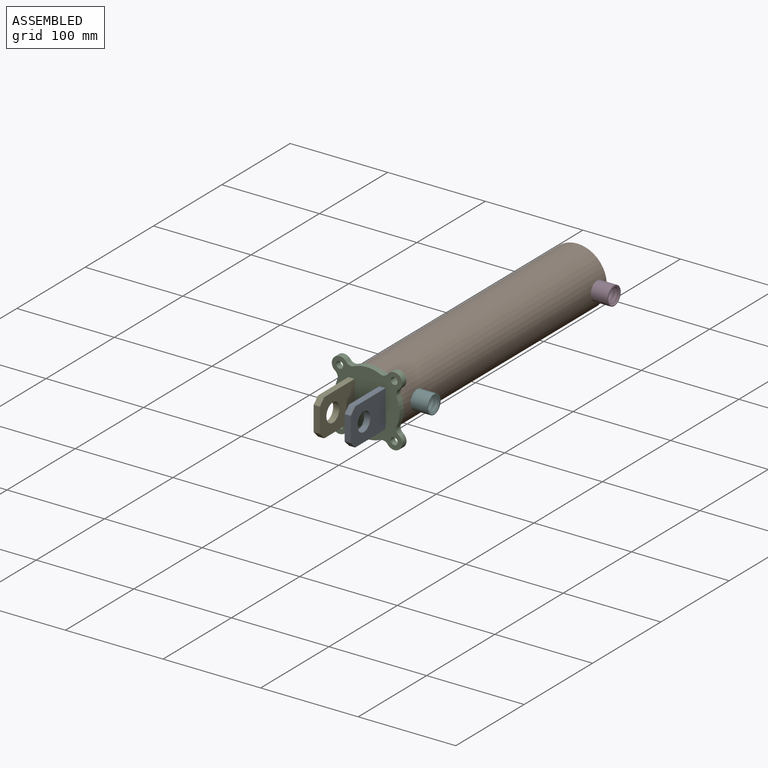
[diagram: assembled view]
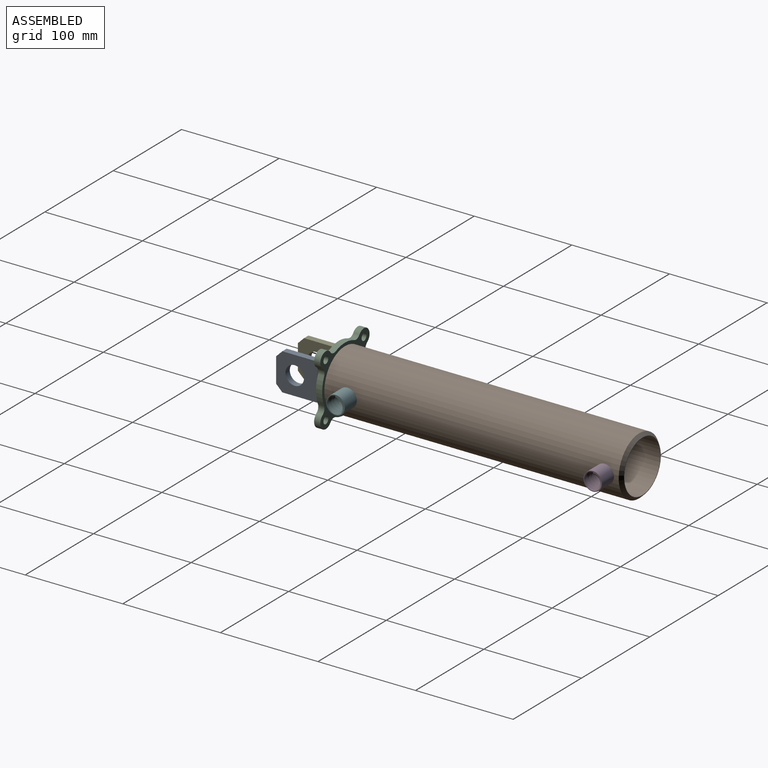
[diagram: assembled view, second angle]
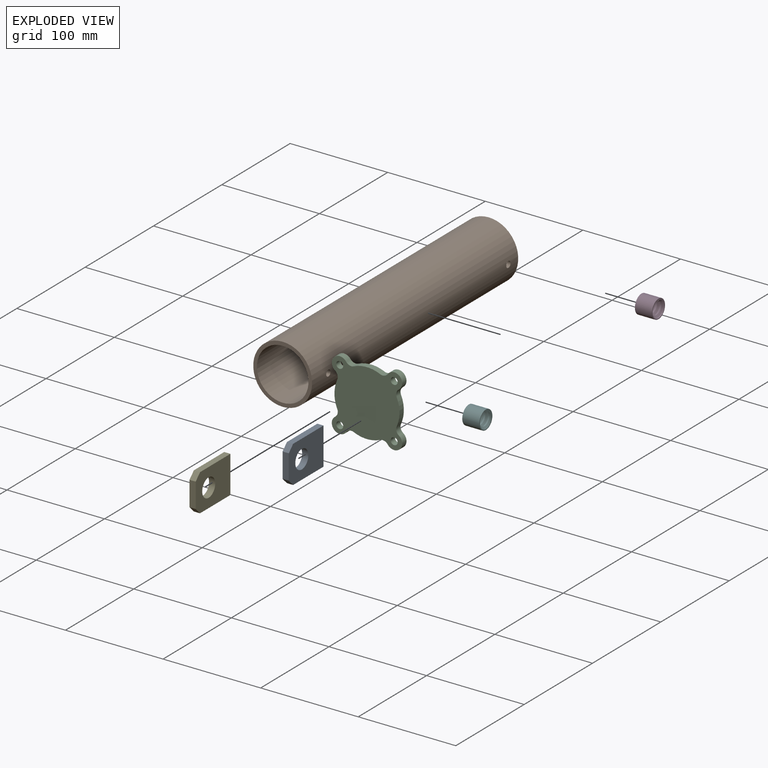
[diagram: exploded view]
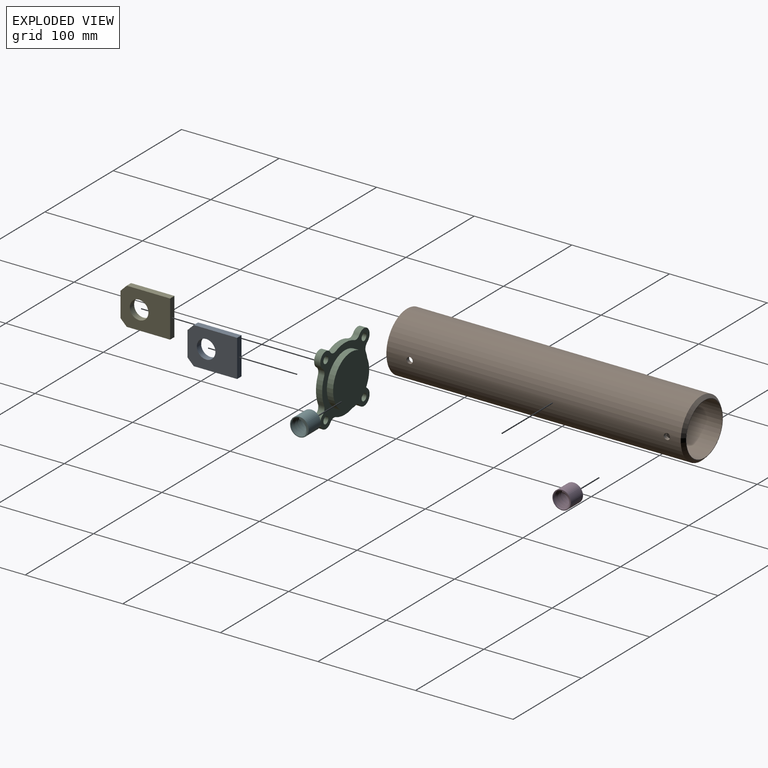
[diagram: exploded view, second angle]
ASSEMBLY  parts=6 mates=5
PART A: 9 faces, bbox 50.8x6.4x38.1 mm
  f0: plane 25.4x6.35mm, normal (-1,0,0), area 161.3mm2, adj f1,f6,f7,f8
  f1: plane 6.35x6.35mm, normal (-0.71,0,-0.71), area 57mm2, adj f0,f2,f7,f8
  f2: plane 44.45x6.35mm, normal (0,0,-1), area 282.3mm2, adj f1,f3,f7,f8
  f3: plane 38.1x6.35mm, normal (1,0,0), area 241.9mm2, adj f2,f4,f7,f8
  f4: plane 44.45x6.35mm, normal (0,0,1), area 282.3mm2, adj f3,f6,f7,f8
  f5: cylinder r=9.53mm len=19.05mm, axis (0,1,0), area 380mm2, adj f7,f8
  f6: plane 6.35x6.35mm, normal (-0.71,0,0.71), area 57mm2, adj f0,f4,f7,f8
  f7: plane 50.8x38.1mm, normal (0,-1,0), area 1610.1mm2, adj f0,f1,f2,f3,f4,f5,f6
  f8: plane 50.8x38.1mm, normal (0,1,0), area 1610.1mm2, adj f0,f1,f2,f3,f4,f5,f6
PART B: 7 faces, bbox 60.3x304.8x60.3 mm
  f0: cylinder r=26.42mm len=304.8mm, axis (0,1,0), area 50526.2mm2, adj f2,f3,f5,f6
  f1: cylinder r=30.16mm len=301.63mm, axis (0,1,0), area 57099.4mm2, adj f2,f4,f5,f6
  f2: plane 60.33x60.33mm, normal (0,-1,0), area 665.9mm2, adj f0,f1
  f3: plane 53.98x53.98mm, normal (0,1,0), area 95.9mm2, adj f0,f4
  f4: cone r=30.16mm half-angle=45deg, axis (0,-1,0), area 806.2mm2, adj f1,f3
  f5: cylinder r=3.17mm len=6.35mm, axis (1,0,0), area 75mm2, adj f0,f1
  f6: cylinder r=3.17mm len=6.35mm, axis (1,0,0), area 75mm2, adj f0,f1
PART C: 24 faces, bbox 72.1x12.7x72.1 mm
  f0: cylinder r=6.35mm len=7.76mm, axis (0,1,0), area 55.3mm2, adj f1,f18,f20,f21
  f1: cylinder r=8.14mm len=14.79mm, axis (0,1,0), area 180mm2, adj f0,f2,f20,f21
  f2: cylinder r=6.35mm len=7.76mm, axis (0,1,0), area 55.3mm2, adj f1,f3,f20,f21
  f3: cylinder r=33.34mm len=27.02mm, axis (0,1,0), area 176.7mm2, adj f2,f4,f20,f21
  f4: cylinder r=6.35mm len=7.76mm, axis (0,1,0), area 55.3mm2, adj f3,f5,f20,f21
  f5: cylinder r=8.14mm len=14.79mm, axis (0,1,0), area 180mm2, adj f4,f6,f20,f21
  f6: cylinder r=6.35mm len=7.76mm, axis (0,1,0), area 55.3mm2, adj f5,f7,f20,f21
  f7: cylinder r=33.34mm len=27.02mm, axis (0,1,0), area 176.7mm2, adj f6,f8,f20,f21
  f8: cylinder r=6.35mm len=7.76mm, axis (0,1,0), area 55.3mm2, adj f7,f9,f20,f21
  f9: cylinder r=8.14mm len=14.79mm, axis (0,1,0), area 180mm2, adj f8,f10,f20,f21
  f10: cylinder r=6.35mm len=7.76mm, axis (0,1,0), area 55.3mm2, adj f9,f11,f20,f21
  f11: cylinder r=33.34mm len=27.02mm, axis (0,1,0), area 176.7mm2, adj f10,f12,f20,f21
  f12: cylinder r=6.35mm len=7.76mm, axis (0,1,0), area 55.3mm2, adj f11,f13,f20,f21
  f13: cylinder r=8.14mm len=14.79mm, axis (0,1,0), area 180mm2, adj f12,f14,f20,f21
  f14: cylinder r=6.35mm len=7.76mm, axis (0,1,0), area 55.3mm2, adj f13,f18,f20,f21
  f15: cylinder r=3.57mm len=7.14mm, axis (0,1,0), area 142.5mm2, adj f20,f21
  f16: cylinder r=3.57mm len=7.14mm, axis (0,1,0), area 142.5mm2, adj f20,f21
  f17: cylinder r=3.57mm len=7.14mm, axis (0,1,0), area 142.5mm2, adj f20,f21
  f18: cylinder r=33.34mm len=27.02mm, axis (0,1,0), area 176.7mm2, adj f0,f14,f20,f21
  f19: cylinder r=3.57mm len=7.14mm, axis (0,1,0), area 142.5mm2, adj f20,f21
  f20: plane 72.11x72.11mm, normal (0,-1,0), area 1997.8mm2, adj f0,f1,f2,f3,f4,f5,f6,f7
  f21: plane 72.11x72.11mm, normal (0,1,0), area 4190mm2, adj f0,f1,f2,f3,f4,f5,f6,f7
  f22: cylinder r=26.42mm len=52.83mm, axis (0,1,0), area 1054mm2, adj f20,f23
  f23: plane 52.83x52.83mm, normal (0,-1,0), area 2192.2mm2, adj f22
PART D: 8 faces, bbox 20.1x21.1x21.1 mm
  f0: plane 2.2x1.79mm, normal (-0.03,0,-1), area 2.3mm2, adj f1,f2,f4,f7
  f1: bspline ~20.06x18.8mm, area 476.9mm2, adj f0,f2,f4,f5,f6,f7
  f2: cylinder r=8.69mm len=17.53mm, axis (0,1,0), area 427.5mm2, adj f0,f1,f4,f5,f6,f7
  f3: cylinder r=9.53mm len=19.05mm, axis (0,1,0), area 1048.9mm2, adj f4,f5
  f4: plane 19.43x19.43mm, normal (0,-1,0), area 53.5mm2, adj f0,f1,f2,f3
  f5: plane 20.08x20.08mm, normal (0,1,0), area 73.7mm2, adj f1,f2,f3,f6,f7
  f6: plane 1.3x0.75mm, normal (0.03,0,1), area 0.5mm2, adj f1,f2,f5
  f7: bspline ~20.06x18.8mm, area 452.5mm2, adj f0,f1,f2,f5
PART E: same geometry as A
PART F: same geometry as D
PLACE A rot(axis=(0,0,1),90deg) t=(15.88,-184.15,0)mm
PLACE B at identity
PLACE C rot(axis=(1,0,0),180deg) t=(0,-158.75,0)mm
PLACE D rot(axis=(-0.58,0.58,0.58),120deg) t=(30.19,134.95,0)mm
PLACE E rot(axis=(0,0,1),90deg) t=(-15.87,-184.15,0)mm
PLACE F rot(axis=(0.58,0.58,-0.58),120deg) t=(47.71,-128.57,0)mm
MATE fastened C.f22 <-> B.f1  axis (0,1,0) through (0,-152.4,0)mm
MATE fastened A.f3 <-> C.f21  axis (0,1,0) through (15.88,-158.75,0)mm
MATE fastened E.f3 <-> C.f21  axis (0,1,0) through (-15.87,-158.75,0)mm
MATE fastened D.f2 <-> B.f5  axis (-1,0,0) through (30.19,134.95,0)mm
MATE fastened F.f3 <-> B.f6  axis (-1,0,0) through (30.19,-128.57,0)mm
